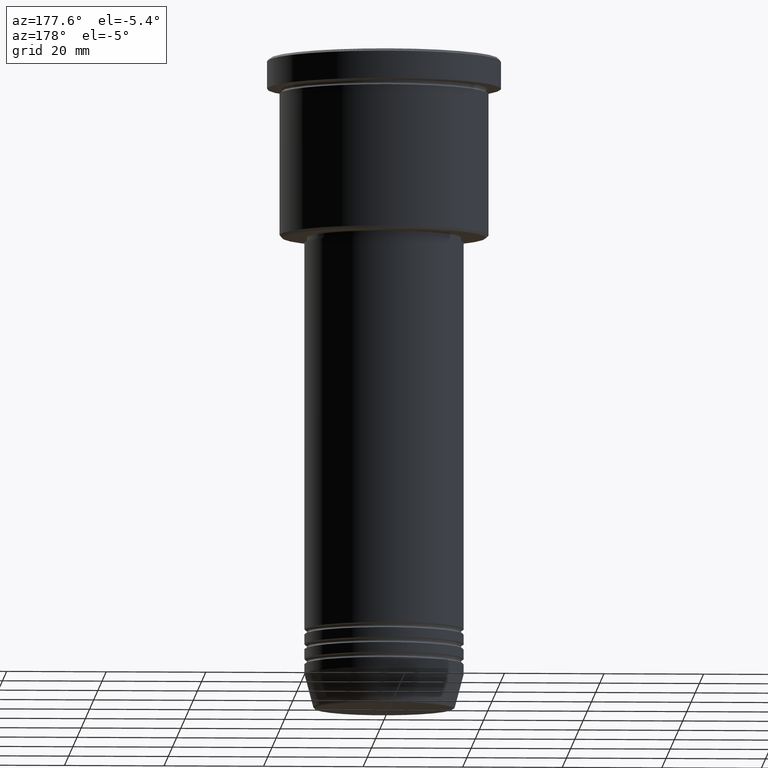
[diagram: clean part render]
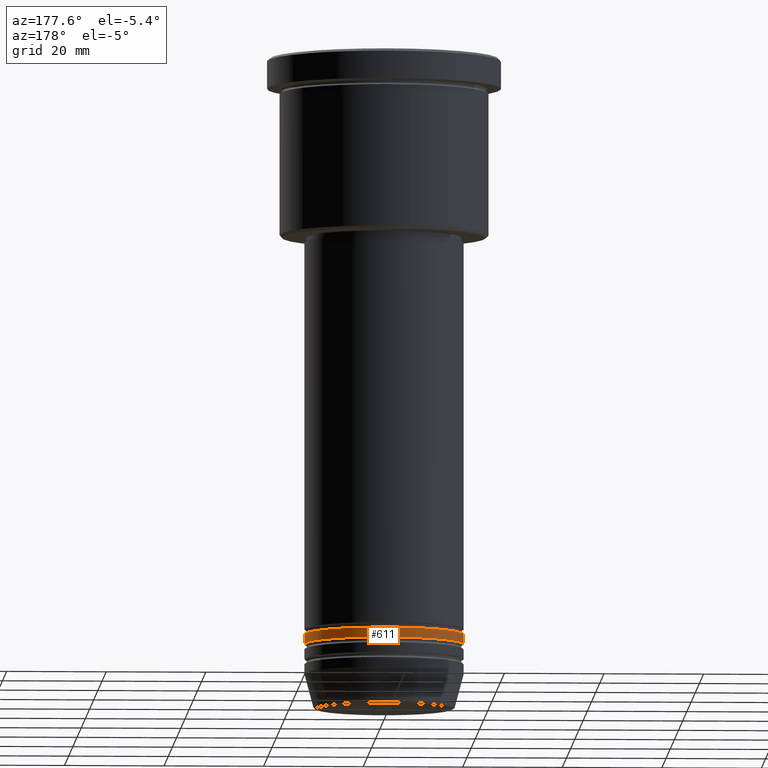
[diagram: same view with one face highlighted and labeled with its STEP entity id]
A machine part, auxiliary view. The second image highlights one B-rep face of the part: STEP entity #611.
In plain terms, the highlighted cylindrical surface (partial cylindrical patch) has radius 16 mm, axis along (-0, -0, 1).
Its self-contained STEP definition (entity closure, byte-faithful):
#20 = CARTESIAN_POINT ( 'NONE',  ( 0.000000000000000000, 0.000000000000000000, -117.9999999999999716 ) ) ;
#48 = DIRECTION ( 'NONE',  ( -0.000000000000000000, -0.000000000000000000, 1.000000000000000000 ) ) ;
#55 = DIRECTION ( 'NONE',  ( 1.000000000000000000, 0.000000000000000000, 0.000000000000000000 ) ) ;
#89 = CARTESIAN_POINT ( 'NONE',  ( -16.00000000000000000, 1.959434878635765131E-15, -117.9999999999999716 ) ) ;
#108 = DIRECTION ( 'NONE',  ( -0.000000000000000000, -0.000000000000000000, 1.000000000000000000 ) ) ;
#119 = CARTESIAN_POINT ( 'NONE',  ( 16.00000000000000000, 0.000000000000000000, -117.9999999999999716 ) ) ;
#137 = VERTEX_POINT ( 'NONE', #192 ) ;
#143 = CARTESIAN_POINT ( 'NONE',  ( 0.000000000000000000, 0.000000000000000000, -115.9999999999999716 ) ) ;
#192 = CARTESIAN_POINT ( 'NONE',  ( -16.00000000000000000, 1.959434878635765131E-15, -115.9999999999999716 ) ) ;
#229 = ORIENTED_EDGE ( 'NONE', *, *, #667, .T. ) ;
#234 = CARTESIAN_POINT ( 'NONE',  ( -16.00000000000000000, 1.959434878635765131E-15, 0.000000000000000000 ) ) ;
#433 = AXIS2_PLACEMENT_3D ( 'NONE', #771, #577, #55 ) ;
#450 = ORIENTED_EDGE ( 'NONE', *, *, #581, .F. ) ;
#470 = DIRECTION ( 'NONE',  ( 1.000000000000000000, 0.000000000000000000, 0.000000000000000000 ) ) ;
#472 = VECTOR ( 'NONE', #108, 1000.000000000000000 ) ;
#527 = CARTESIAN_POINT ( 'NONE',  ( 16.00000000000000000, 0.000000000000000000, -115.9999999999999716 ) ) ;
#541 = EDGE_LOOP ( 'NONE', ( #976, #229, #450, #973 ) ) ;
#552 = LINE ( 'NONE', #754, #472 ) ;
#577 = DIRECTION ( 'NONE',  ( -0.000000000000000000, -0.000000000000000000, 1.000000000000000000 ) ) ;
#581 = EDGE_CURVE ( 'NONE', #799, #137, #965, .T. ) ;
#597 = DIRECTION ( 'NONE',  ( 1.000000000000000000, 0.000000000000000000, 0.000000000000000000 ) ) ;
#609 = CIRCLE ( 'NONE', #735, 16.00000000000000000 ) ;
#611 = ADVANCED_FACE ( 'NONE', ( #1042 ), #948, .T. ) ;
#667 = EDGE_CURVE ( 'NONE', #852, #137, #678, .T. ) ;
#678 = LINE ( 'NONE', #234, #1045 ) ;
#735 = AXIS2_PLACEMENT_3D ( 'NONE', #20, #1106, #470 ) ;
#754 = CARTESIAN_POINT ( 'NONE',  ( 16.00000000000000000, 0.000000000000000000, 0.000000000000000000 ) ) ;
#771 = CARTESIAN_POINT ( 'NONE',  ( 0.000000000000000000, 0.000000000000000000, 0.000000000000000000 ) ) ;
#799 = VERTEX_POINT ( 'NONE', #527 ) ;
#841 = EDGE_CURVE ( 'NONE', #1133, #799, #552, .T. ) ;
#852 = VERTEX_POINT ( 'NONE', #89 ) ;
#948 = CYLINDRICAL_SURFACE ( 'NONE', #433, 16.00000000000000000 ) ;
#965 = CIRCLE ( 'NONE', #1120, 16.00000000000000000 ) ;
#973 = ORIENTED_EDGE ( 'NONE', *, *, #841, .F. ) ;
#976 = ORIENTED_EDGE ( 'NONE', *, *, #1072, .T. ) ;
#1036 = DIRECTION ( 'NONE',  ( -0.000000000000000000, -0.000000000000000000, 1.000000000000000000 ) ) ;
#1042 = FACE_OUTER_BOUND ( 'NONE', #541, .T. ) ;
#1045 = VECTOR ( 'NONE', #1036, 1000.000000000000000 ) ;
#1072 = EDGE_CURVE ( 'NONE', #1133, #852, #609, .T. ) ;
#1106 = DIRECTION ( 'NONE',  ( -0.000000000000000000, -0.000000000000000000, 1.000000000000000000 ) ) ;
#1120 = AXIS2_PLACEMENT_3D ( 'NONE', #143, #48, #597 ) ;
#1133 = VERTEX_POINT ( 'NONE', #119 ) ;